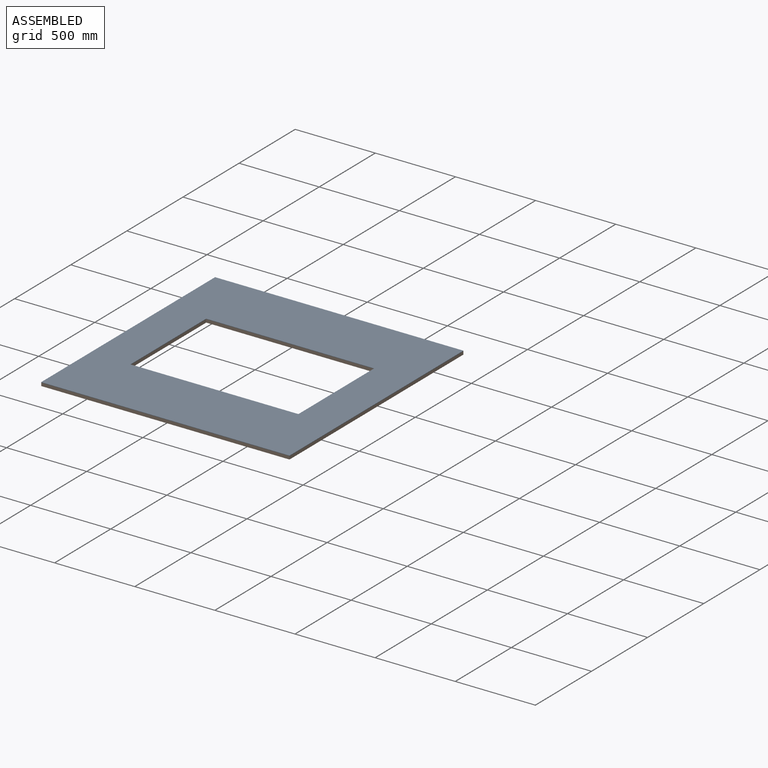
[diagram: assembled view]
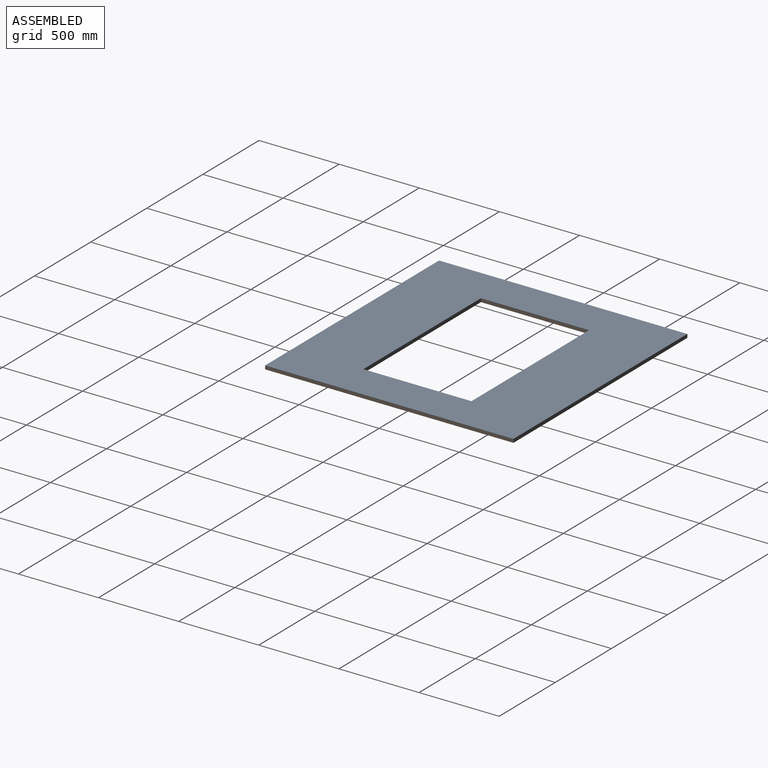
[diagram: assembled view, second angle]
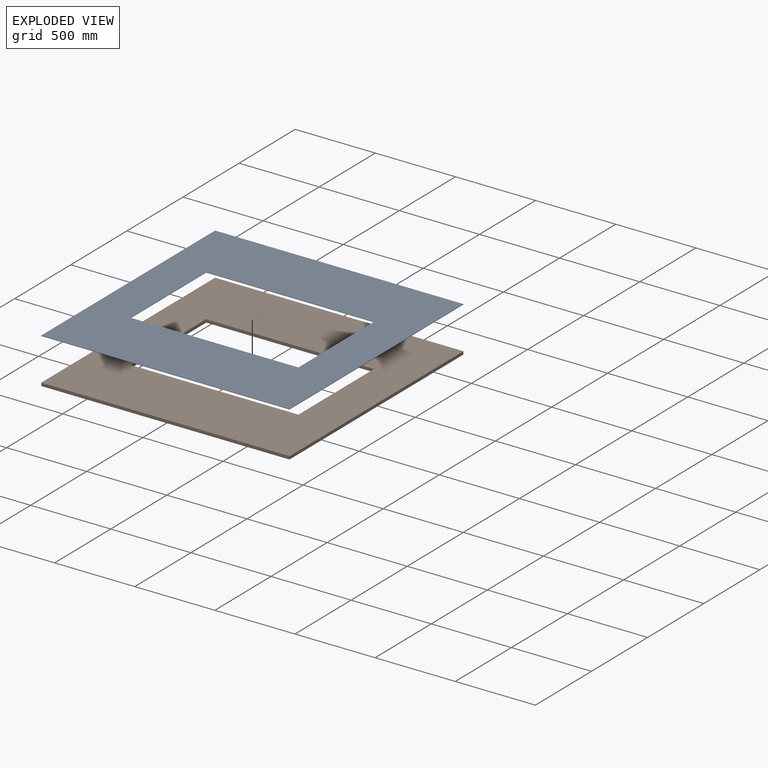
[diagram: exploded view]
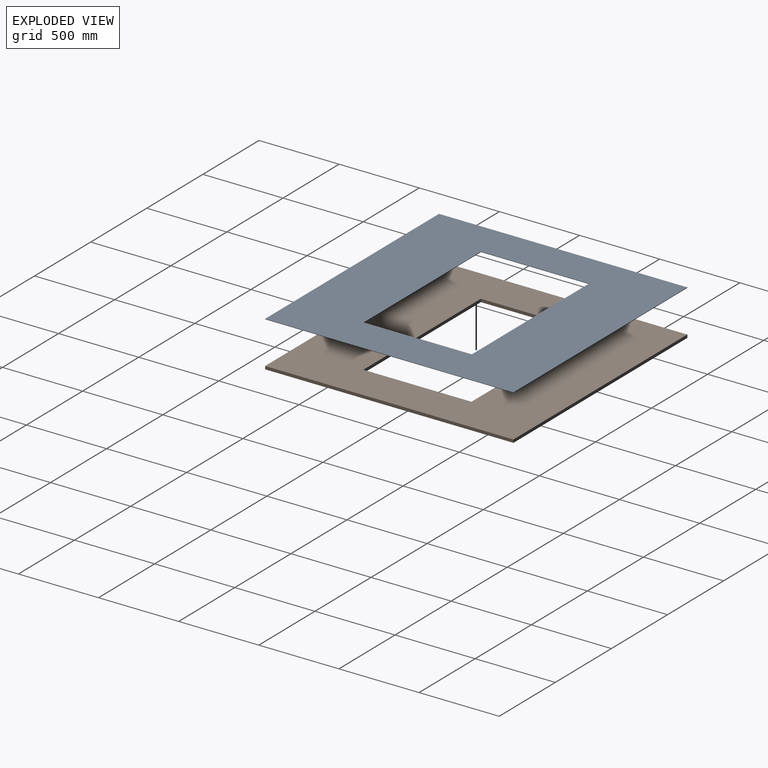
[diagram: exploded view, second angle]
ASSEMBLY  parts=2 mates=3
PART A: 10 faces, bbox 1549.4x1549.4x3.2 mm
  f0: plane 1047.96x3.18mm, normal (0,1,0), area 3327.3mm2, adj f1,f7,f8,f9
  f1: plane 674.76x3.18mm, normal (1,0,0), area 2142.4mm2, adj f0,f2,f8,f9
  f2: plane 1047.96x3.18mm, normal (0,-1,0), area 3327.3mm2, adj f1,f7,f8,f9
  f3: plane 1549.4x3.18mm, normal (1,0,0), area 4919.3mm2, adj f4,f6,f8,f9
  f4: plane 1549.4x3.18mm, normal (0,1,0), area 4919.3mm2, adj f3,f5,f8,f9
  f5: plane 1549.4x3.18mm, normal (-1,0,0), area 4919.3mm2, adj f4,f6,f8,f9
  f6: plane 1549.4x3.18mm, normal (0,-1,0), area 4919.3mm2, adj f3,f5,f8,f9
  f7: plane 674.76x3.18mm, normal (-1,0,0), area 2142.4mm2, adj f0,f2,f8,f9
  f8: plane 1549.4x1549.4mm, normal (0,0,1), area 1693519.1mm2, adj f0,f1,f2,f3,f4,f5,f6,f7
  f9: plane 1549.4x1549.4mm, normal (0,0,-1), area 1693519.1mm2, adj f0,f1,f2,f3,f4,f5,f6,f7
PART B: 10 faces, bbox 1549.4x1549.4x19.1 mm
  f0: plane 1047.96x19.05mm, normal (0,1,0), area 19963.7mm2, adj f1,f7,f8,f9
  f1: plane 674.76x19.05mm, normal (1,0,0), area 12854.1mm2, adj f0,f2,f8,f9
  f2: plane 1047.96x19.05mm, normal (0,-1,0), area 19963.7mm2, adj f1,f7,f8,f9
  f3: plane 1549.4x19.05mm, normal (1,0,0), area 29516.1mm2, adj f4,f6,f8,f9
  f4: plane 1549.4x19.05mm, normal (0,1,0), area 29516.1mm2, adj f3,f5,f8,f9
  f5: plane 1549.4x19.05mm, normal (-1,0,0), area 29516.1mm2, adj f4,f6,f8,f9
  f6: plane 1549.4x19.05mm, normal (0,-1,0), area 29516.1mm2, adj f3,f5,f8,f9
  f7: plane 674.76x19.05mm, normal (-1,0,0), area 12854.1mm2, adj f0,f2,f8,f9
  f8: plane 1549.4x1549.4mm, normal (0,0,-1), area 1693519.1mm2, adj f0,f1,f2,f3,f4,f5,f6,f7
  f9: plane 1549.4x1549.4mm, normal (0,0,1), area 1693519.1mm2, adj f0,f1,f2,f3,f4,f5,f6,f7
PLACE A t=(-467.17,429.07,0)mm
PLACE B t=(-467.17,429.07,0)mm
MATE planar A.f7 <-> B.f7  axis (-1,0,0) through (56.81,429.07,722.31)mm
MATE planar B.f0 <-> A.f0  axis (0,1,0) through (-467.17,91.69,711.2)mm
MATE planar B.f9 <-> A.f9  axis (0,0,1) through (307.53,-345.63,720.72)mm
